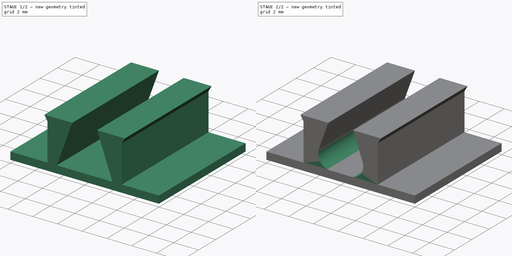
[diagram: build sequence overview — one tinted view per stage of 2, left to right]
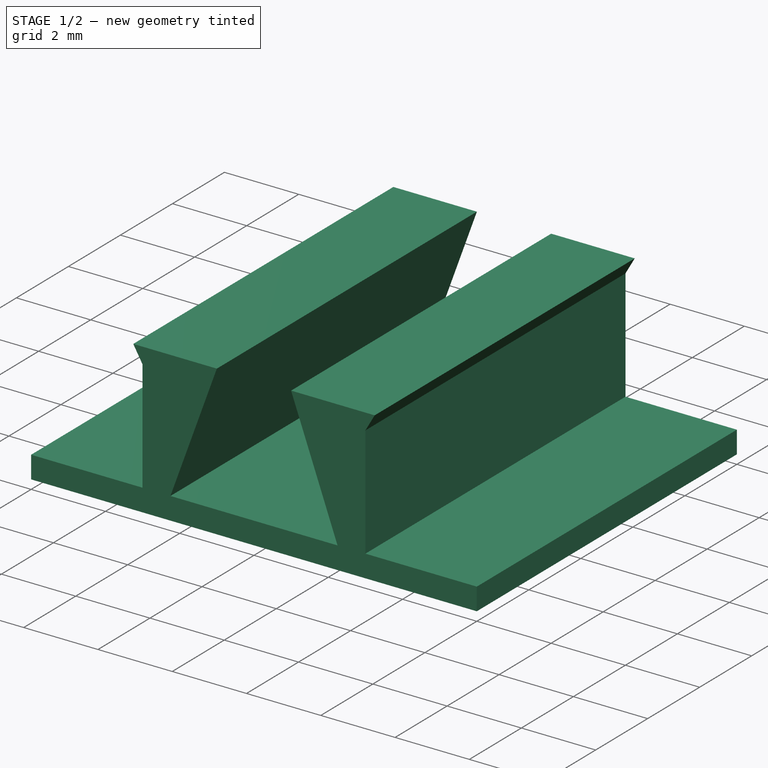
[diagram: stage 1 of 2 — iso view after this stage's code; geometry added in this stage tinted green]
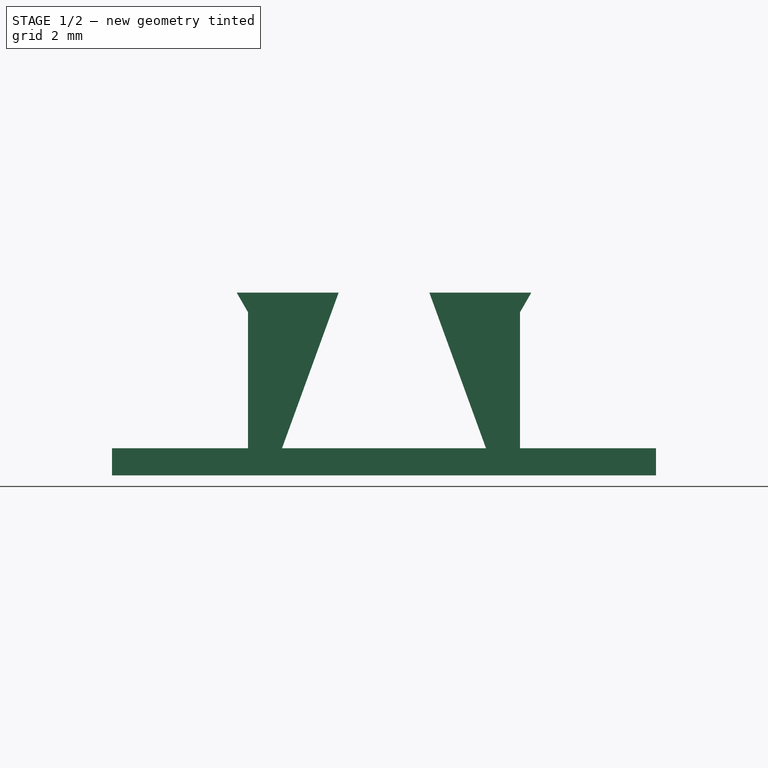
[diagram: stage 1 of 2 — front view after this stage's code; geometry added in this stage tinted green]
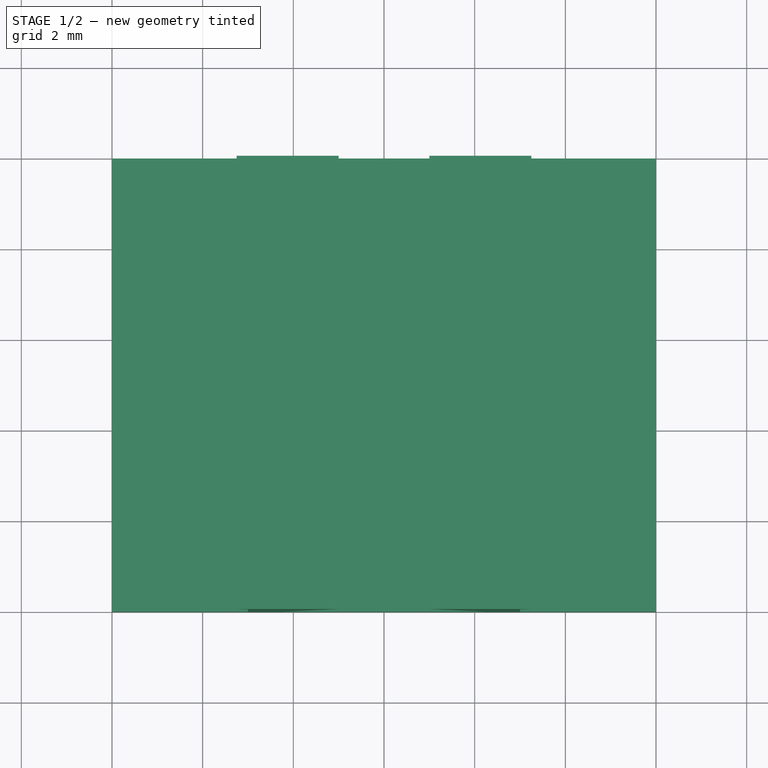
[diagram: stage 1 of 2 — top view after this stage's code; geometry added in this stage tinted green]
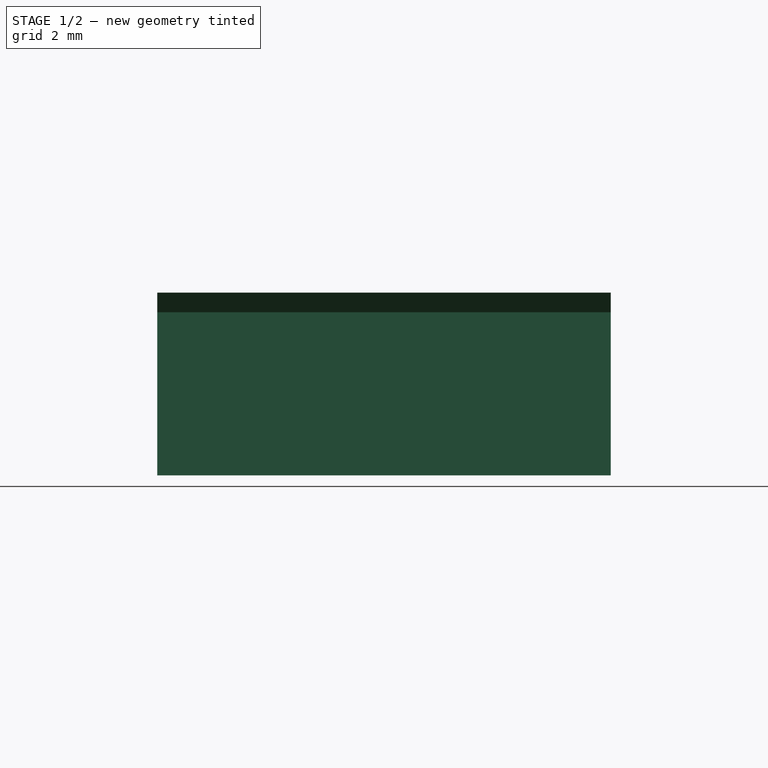
[diagram: stage 1 of 2 — right view after this stage's code; geometry added in this stage tinted green]
FCSTD DOCUMENT  (FreeCAD 0.19R20209 (Git))
Label: test3
License: Creative Commons Attribution
LicenseURL: http://creativecommons.org/licenses/by/4.0/
objects: Sketcher::SketchObject×1, PartDesign::Pad×1, PartDesign::Fillet×1, PartDesign::Body×1
note: 6 computed .brp shape members not serialized (recipe doc carries the construction recipe); baked Part::Feature solids carry a one-line shape summary decoded from their .brp

FEATURE [Sketcher::SketchObject] Sketch
  MapMode = 5
  Placement = pos=(0,0,0) rot=(1,0,0;1.5708rad)
  Support = -> [XZ_Plane]
  sketch-geometry (14):
    g0: LineSegment StartX=-3 StartY=0 StartZ=0 EndX=-3 EndY=3 EndZ=0
    g1: LineSegment StartX=3 StartY=3 StartZ=0 EndX=3 EndY=0 EndZ=0
    g2: LineSegment StartX=3 StartY=0 StartZ=0 EndX=6 EndY=0 EndZ=0
    g3: LineSegment StartX=6 StartY=0 StartZ=0 EndX=6 EndY=-0.6 EndZ=0
    g4: LineSegment StartX=6 StartY=-0.6 StartZ=0 EndX=-6 EndY=-0.6 EndZ=0
    g5: LineSegment StartX=-6 StartY=-0.6 StartZ=0 EndX=-6 EndY=0 EndZ=0
    g6: LineSegment StartX=-6 StartY=0 StartZ=0 EndX=-3 EndY=0 EndZ=0
    g7: LineSegment StartX=-3 StartY=3 StartZ=0 EndX=-3.25 EndY=3.43301 EndZ=0
    g8: LineSegment StartX=-3.25 StartY=3.43301 StartZ=0 EndX=-1 EndY=3.43301 EndZ=0
    g9: LineSegment StartX=3.25 StartY=3.43301 StartZ=0 EndX=3 EndY=3 EndZ=0
    g10: LineSegment StartX=1 StartY=3.43301 StartZ=0 EndX=3.25 EndY=3.43301 EndZ=0
    g11: LineSegment StartX=-1 StartY=3.43301 StartZ=0 EndX=-2.24951 EndY=0 EndZ=0
    g12: LineSegment StartX=-2.24951 StartY=0 StartZ=0 EndX=2.24951 EndY=0 EndZ=0
    g13: LineSegment StartX=2.24951 StartY=0 StartZ=0 EndX=1 EndY=3.43301 EndZ=0
  constraints (38):
    c: Vertical(g0)
    c: Vertical(g1)
    c: Coincident(g1,g2)
    c: Horizontal(g2)
    c: Coincident(g2,g3)
    c: Vertical(g3)
    c: Coincident(g3,g4)
    c: Coincident(g4,g5)
    c: Vertical(g5)
    c: Coincident(g5,g6)
    c: Horizontal(g6)
    c: Coincident(g6,g0)
    c: Symmetric(g0,g1,g-1)
    c: Horizontal(g1,g0)
    c: DistanceX(g0,g1) = 6
    c: DistanceY(g0,g0) = 3
    c: DistanceX(g4,g4) = 12
    c: DistanceY(g5,g5) = 0.6
    c: Symmetric(g3,g4,g-2)
    c: Coincident(g7,g8)
    c: Coincident(g10,g9)
    c: Coincident(g9,g1)
    c: Coincident(g7,g0)
    c: Angle(g7,g8) = 1.0472
    c: Angle(g8,g9) = 1.0472
    c: DistanceX(g7,g10) = 6.5
    c: Tangent(g8,g10)
    c: Symmetric(g8,g10,g-2)
    c: DistanceX(g8,g10) = 2
    c: Equal(g9,g7)
    c: Coincident(g11,g12)
    c: Coincident(g12,g13)
    c: Coincident(g11,g8)
    c: Equal(g11,g13)
    c: Symmetric(g11,g12,g-2)
    c: Coincident(g13,g10)
    c: Angle(g13,g12) = 1.22173
    c: PointOnObject(g-1,g12)
FEATURE [PartDesign::Pad] Pad
  Length = 10
  Length2 = 100
  Placement = pos=(0,0,0) rot=(1,0,0;1.5708rad)
  Profile = -> Sketch
  Refine = true
  Type = 0
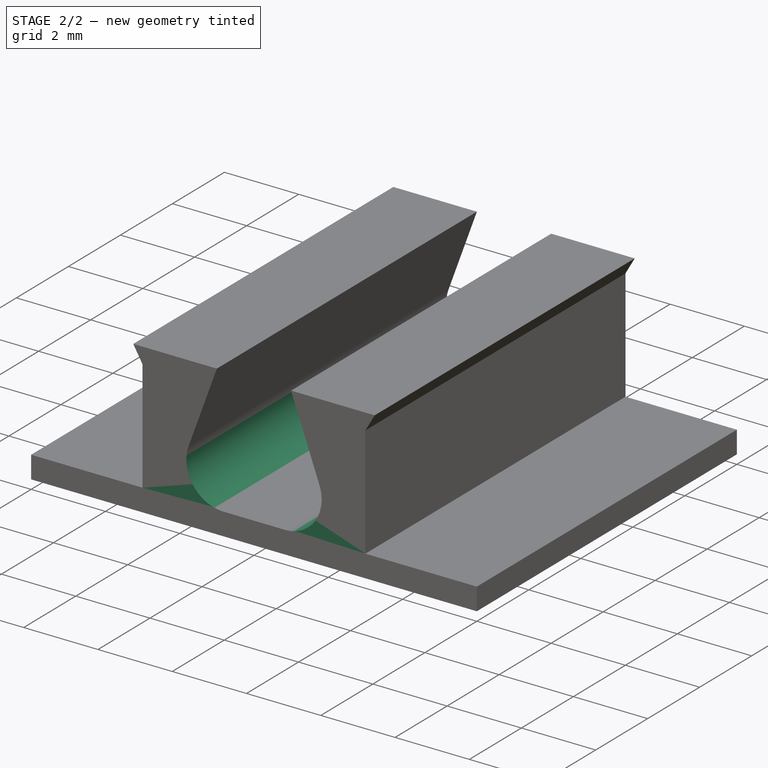
[diagram: stage 2 of 2 — iso view after this stage's code; geometry added in this stage tinted green]
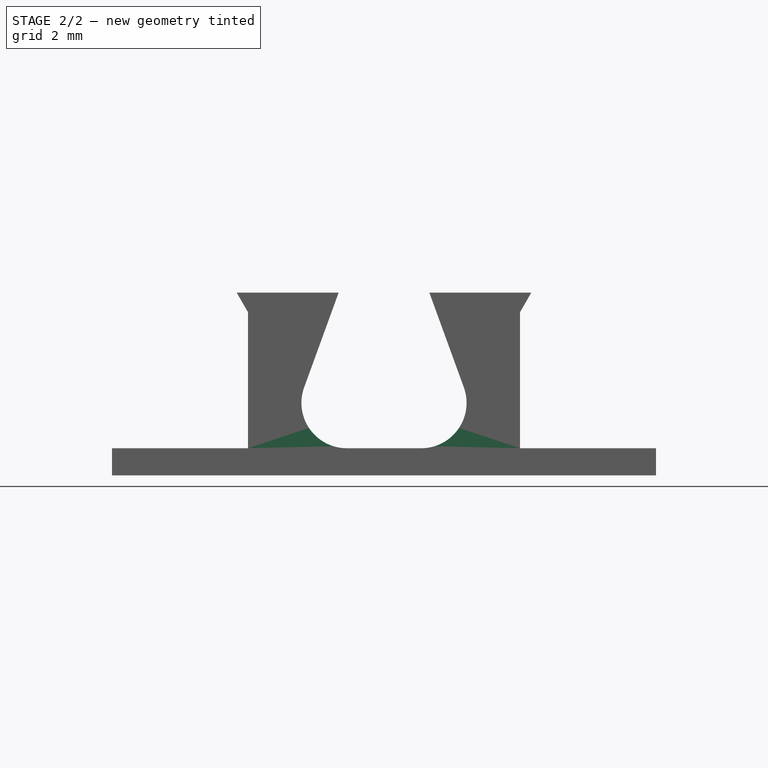
[diagram: stage 2 of 2 — front view after this stage's code; geometry added in this stage tinted green]
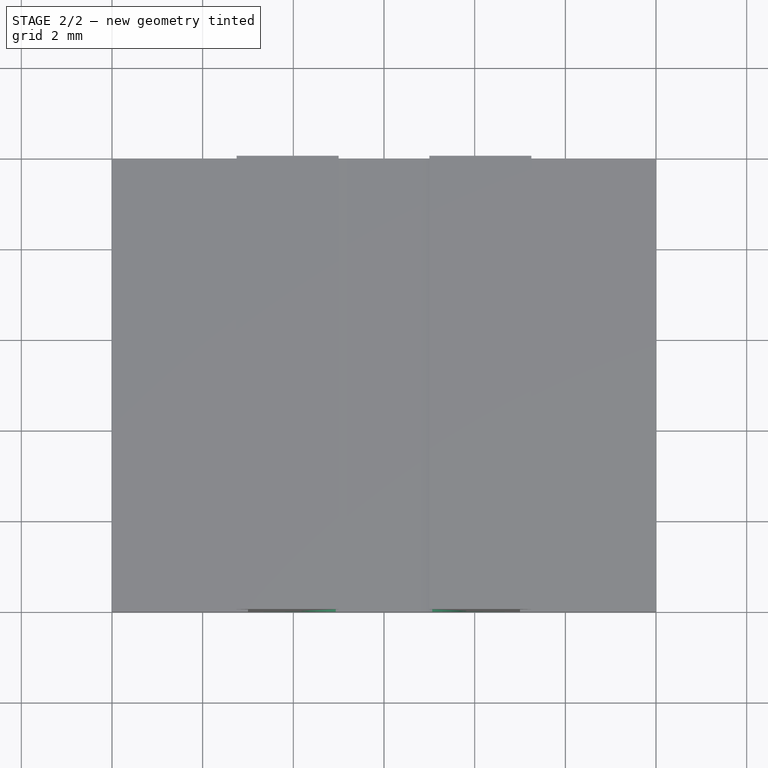
[diagram: stage 2 of 2 — top view after this stage's code; geometry added in this stage tinted green]
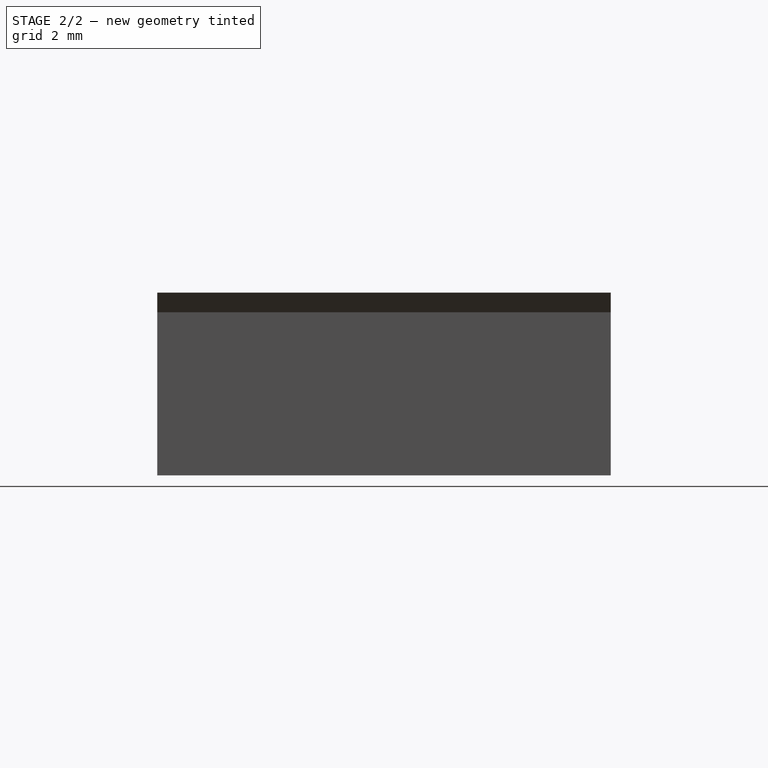
[diagram: stage 2 of 2 — right view after this stage's code; geometry added in this stage tinted green]
FEATURE [PartDesign::Fillet] Fillet
  Base = -> Pad [Edge11,Edge14]
  BaseFeature = -> Pad
  Placement = pos=(0,0,0) rot=(1,0,0;1.5708rad)
  Radius = 1
  Refine = true
  SupportTransform = true
FEATURE [PartDesign::Body] Body
  Group = -> [Sketch,Pad,Fillet]
  Origin = -> Origin
  Tip = -> Fillet
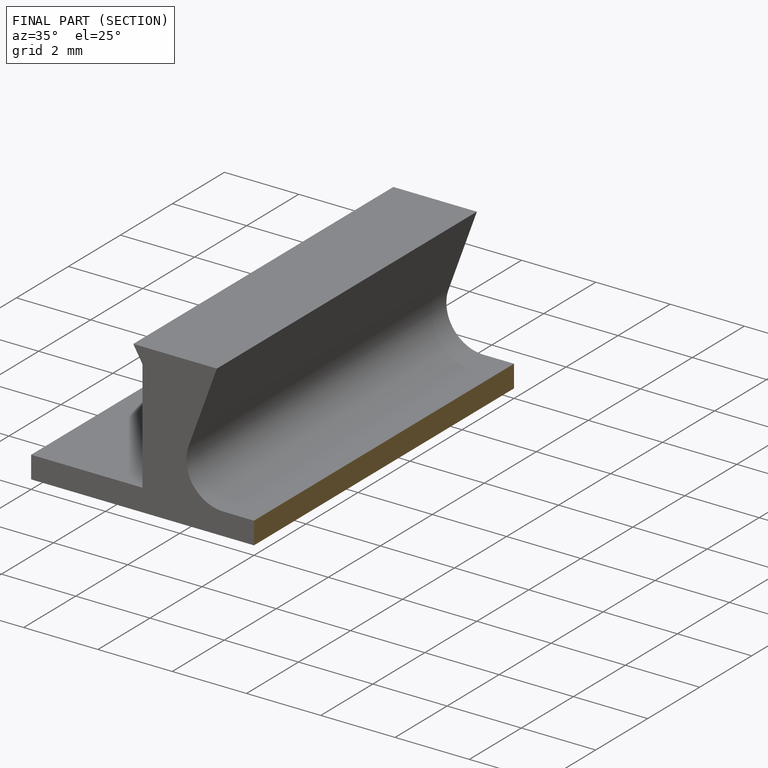
[diagram: finished part — half-section view (interior)]
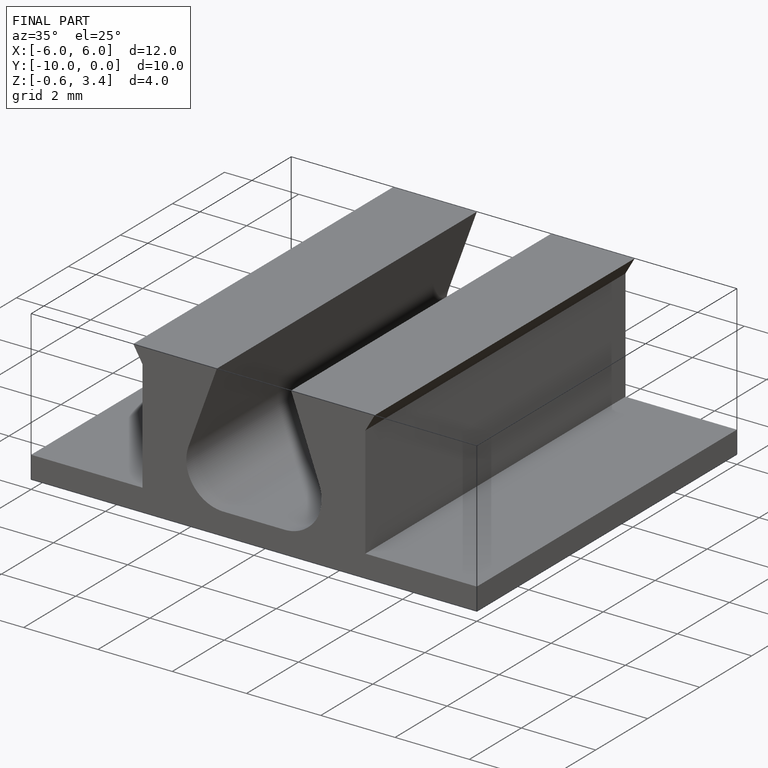
[diagram: finished part — iso view with bounding-box wireframe]
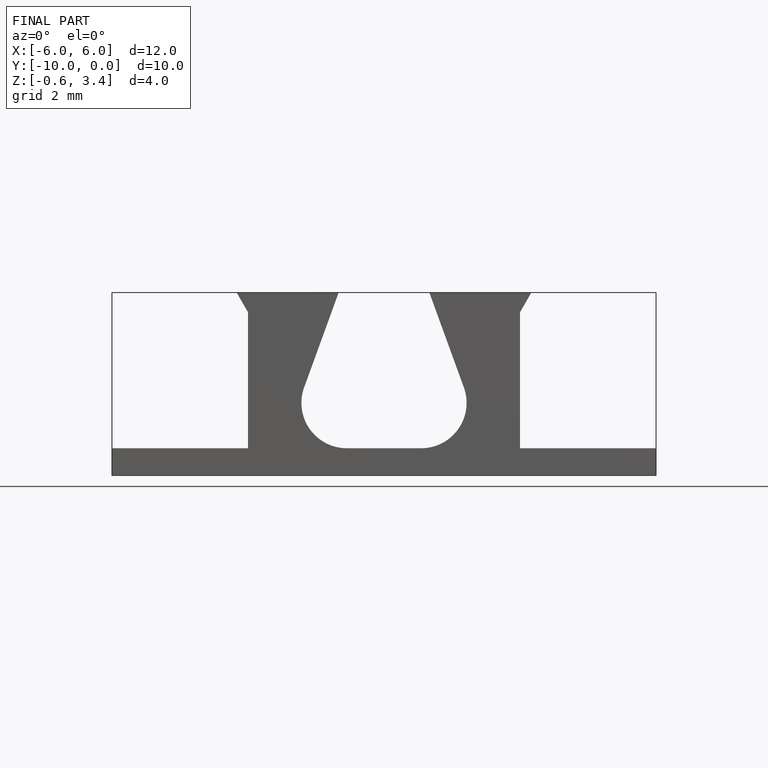
[diagram: finished part — front view with bounding-box wireframe]
